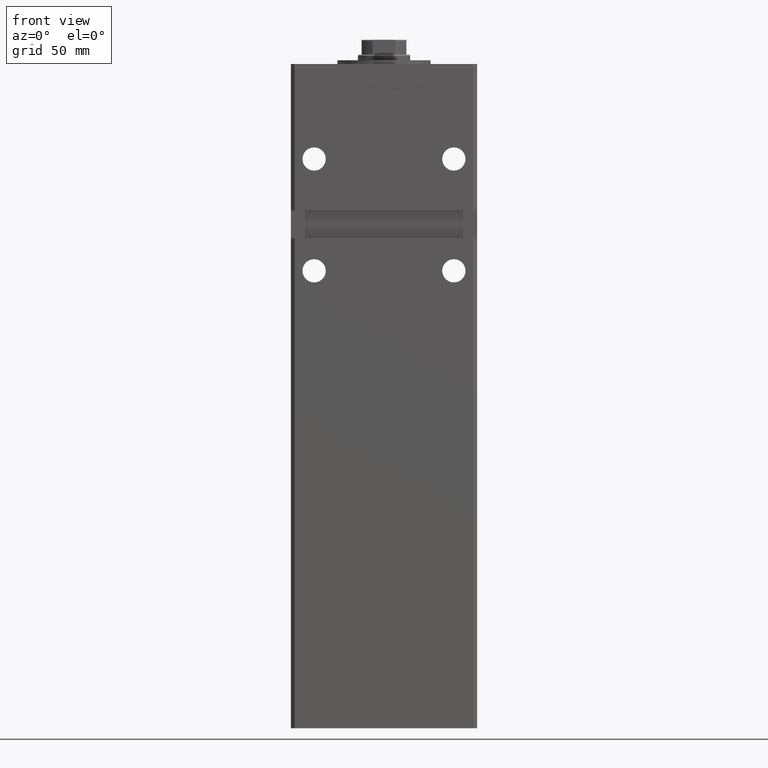
[diagram: clean part render]
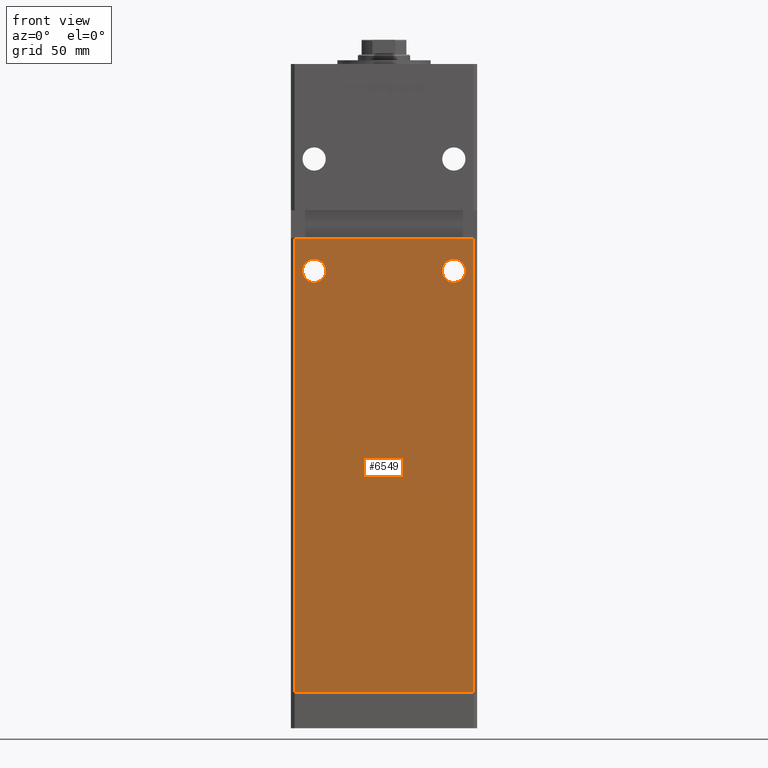
[diagram: same view with one face highlighted and labeled with its STEP entity id]
A machine part, front view. The second image highlights one B-rep face of the part: STEP entity #6549.
In plain terms, the highlighted planar face has unit normal (0, 1, 0).
Its self-contained STEP definition (entity closure, byte-faithful):
#990 = EDGE_CURVE ( 'NONE', #23550, #22806, #29175, .T. ) ;
#3137 = CARTESIAN_POINT ( 'NONE',  ( -47.99999999999998579, -43.50000000000000000, 0.000000000000000000 ) ) ;
#3265 = DIRECTION ( 'NONE',  ( 0.000000000000000000, 1.000000000000000000, 0.000000000000000000 ) ) ;
#3828 = EDGE_CURVE ( 'NONE', #40368, #40178, #45974, .T. ) ;
#5014 = ORIENTED_EDGE ( 'NONE', *, *, #27213, .T. ) ;
#5345 = EDGE_LOOP ( 'NONE', ( #5014, #14848 ) ) ;
#6089 = EDGE_LOOP ( 'NONE', ( #53082, #43790, #48019, #41916 ) ) ;
#6127 = EDGE_CURVE ( 'NONE', #40178, #16731, #22554, .T. ) ;
#6549 = ADVANCED_FACE ( 'NONE', ( #22896, #15089, #43392 ), #51720, .F. ) ;
#8357 = CARTESIAN_POINT ( 'NONE',  ( -49.99999999999998579, -43.50000000000000000, 244.0000000000000000 ) ) ;
#9751 = VERTEX_POINT ( 'NONE', #40987 ) ;
#12757 = DIRECTION ( 'NONE',  ( 0.000000000000000000, 1.000000000000000000, 0.000000000000000000 ) ) ;
#13430 = CIRCLE ( 'NONE', #33199, 6.250000000000005329 ) ;
#13890 = VECTOR ( 'NONE', #18258, 1000.000000000000000 ) ;
#13902 = CARTESIAN_POINT ( 'NONE',  ( -47.99999999999998579, -43.50000000000000000, 318.5000000000000000 ) ) ;
#14583 = AXIS2_PLACEMENT_3D ( 'NONE', #49648, #12757, #29158 ) ;
#14714 = DIRECTION ( 'NONE',  ( 0.000000000000000000, 1.000000000000000000, 0.000000000000000000 ) ) ;
#14848 = ORIENTED_EDGE ( 'NONE', *, *, #42001, .T. ) ;
#15089 = FACE_BOUND ( 'NONE', #23061, .T. ) ;
#15903 = EDGE_CURVE ( 'NONE', #40368, #32188, #41998, .T. ) ;
#16731 = VERTEX_POINT ( 'NONE', #18600 ) ;
#17047 = VECTOR ( 'NONE', #24752, 1000.000000000000000 ) ;
#17279 = AXIS2_PLACEMENT_3D ( 'NONE', #41915, #33549, #33284 ) ;
#18158 = CIRCLE ( 'NONE', #17279, 6.250000000000005329 ) ;
#18258 = DIRECTION ( 'NONE',  ( 1.000000000000000000, 0.000000000000000000, 0.000000000000000000 ) ) ;
#18488 = DIRECTION ( 'NONE',  ( 0.000000000000000000, 0.000000000000000000, 1.000000000000000000 ) ) ;
#18554 = DIRECTION ( 'NONE',  ( 0.000000000000000000, 1.000000000000000000, 0.000000000000000000 ) ) ;
#18600 = CARTESIAN_POINT ( 'NONE',  ( 47.99999999999998579, -43.50000000000000000, 0.000000000000000000 ) ) ;
#20704 = CARTESIAN_POINT ( 'NONE',  ( 47.99999999999998579, -43.50000000000000000, 244.0000000000000000 ) ) ;
#20785 = CIRCLE ( 'NONE', #25090, 6.250000000000005329 ) ;
#22554 = LINE ( 'NONE', #51113, #13890 ) ;
#22806 = VERTEX_POINT ( 'NONE', #25939 ) ;
#22896 = FACE_BOUND ( 'NONE', #5345, .T. ) ;
#23061 = EDGE_LOOP ( 'NONE', ( #24374, #52099 ) ) ;
#23550 = VERTEX_POINT ( 'NONE', #31443 ) ;
#24374 = ORIENTED_EDGE ( 'NONE', *, *, #25270, .T. ) ;
#24752 = DIRECTION ( 'NONE',  ( 1.000000000000000000, 0.000000000000000000, 0.000000000000000000 ) ) ;
#24998 = VECTOR ( 'NONE', #41683, 1000.000000000000000 ) ;
#25090 = AXIS2_PLACEMENT_3D ( 'NONE', #42554, #18554, #34986 ) ;
#25270 = EDGE_CURVE ( 'NONE', #22806, #23550, #20785, .T. ) ;
#25939 = CARTESIAN_POINT ( 'NONE',  ( 37.50000000000000000, -43.50000000000000000, 232.7500000000000000 ) ) ;
#27213 = EDGE_CURVE ( 'NONE', #30280, #9751, #18158, .T. ) ;
#29158 = DIRECTION ( 'NONE',  ( 0.000000000000000000, 0.000000000000000000, 1.000000000000000000 ) ) ;
#29175 = CIRCLE ( 'NONE', #14583, 6.250000000000005329 ) ;
#30280 = VERTEX_POINT ( 'NONE', #38628 ) ;
#30966 = DIRECTION ( 'NONE',  ( 0.000000000000000000, -0.000000000000000000, 1.000000000000000000 ) ) ;
#31443 = CARTESIAN_POINT ( 'NONE',  ( 37.50000000000000000, -43.50000000000000000, 220.2500000000000000 ) ) ;
#32188 = VERTEX_POINT ( 'NONE', #20704 ) ;
#33199 = AXIS2_PLACEMENT_3D ( 'NONE', #51610, #14714, #18488 ) ;
#33284 = DIRECTION ( 'NONE',  ( 0.000000000000000000, 0.000000000000000000, 1.000000000000000000 ) ) ;
#33549 = DIRECTION ( 'NONE',  ( 0.000000000000000000, 1.000000000000000000, 0.000000000000000000 ) ) ;
#34986 = DIRECTION ( 'NONE',  ( 0.000000000000000000, 0.000000000000000000, 1.000000000000000000 ) ) ;
#35291 = CARTESIAN_POINT ( 'NONE',  ( -47.99999999999998579, -43.50000000000000000, 318.5000000000000000 ) ) ;
#37613 = DIRECTION ( 'NONE',  ( -0.000000000000000000, -0.000000000000000000, -1.000000000000000000 ) ) ;
#38628 = CARTESIAN_POINT ( 'NONE',  ( -37.50000000000000000, -43.50000000000000000, 232.7500000000000000 ) ) ;
#38868 = AXIS2_PLACEMENT_3D ( 'NONE', #35291, #3265, #30966 ) ;
#39039 = EDGE_CURVE ( 'NONE', #32188, #16731, #45950, .T. ) ;
#39136 = VECTOR ( 'NONE', #37613, 1000.000000000000000 ) ;
#40178 = VERTEX_POINT ( 'NONE', #3137 ) ;
#40368 = VERTEX_POINT ( 'NONE', #50465 ) ;
#40987 = CARTESIAN_POINT ( 'NONE',  ( -37.50000000000000000, -43.50000000000000000, 220.2500000000000000 ) ) ;
#41683 = DIRECTION ( 'NONE',  ( -0.000000000000000000, -0.000000000000000000, -1.000000000000000000 ) ) ;
#41915 = CARTESIAN_POINT ( 'NONE',  ( -37.50000000000000000, -43.50000000000000000, 226.5000000000000000 ) ) ;
#41916 = ORIENTED_EDGE ( 'NONE', *, *, #6127, .T. ) ;
#41998 = LINE ( 'NONE', #8357, #17047 ) ;
#42001 = EDGE_CURVE ( 'NONE', #9751, #30280, #13430, .T. ) ;
#42554 = CARTESIAN_POINT ( 'NONE',  ( 37.50000000000000000, -43.50000000000000000, 226.5000000000000000 ) ) ;
#43392 = FACE_OUTER_BOUND ( 'NONE', #6089, .T. ) ;
#43790 = ORIENTED_EDGE ( 'NONE', *, *, #15903, .F. ) ;
#44896 = CARTESIAN_POINT ( 'NONE',  ( 47.99999999999998579, -43.50000000000000000, 318.5000000000000000 ) ) ;
#45950 = LINE ( 'NONE', #44896, #39136 ) ;
#45974 = LINE ( 'NONE', #13902, #24998 ) ;
#48019 = ORIENTED_EDGE ( 'NONE', *, *, #3828, .T. ) ;
#49648 = CARTESIAN_POINT ( 'NONE',  ( 37.50000000000000000, -43.50000000000000000, 226.5000000000000000 ) ) ;
#50465 = CARTESIAN_POINT ( 'NONE',  ( -47.99999999999998579, -43.50000000000000000, 244.0000000000000000 ) ) ;
#51113 = CARTESIAN_POINT ( 'NONE',  ( -47.99999999999998579, -43.50000000000000000, 0.000000000000000000 ) ) ;
#51610 = CARTESIAN_POINT ( 'NONE',  ( -37.50000000000000000, -43.50000000000000000, 226.5000000000000000 ) ) ;
#51720 = PLANE ( 'NONE',  #38868 ) ;
#52099 = ORIENTED_EDGE ( 'NONE', *, *, #990, .T. ) ;
#53082 = ORIENTED_EDGE ( 'NONE', *, *, #39039, .F. ) ;